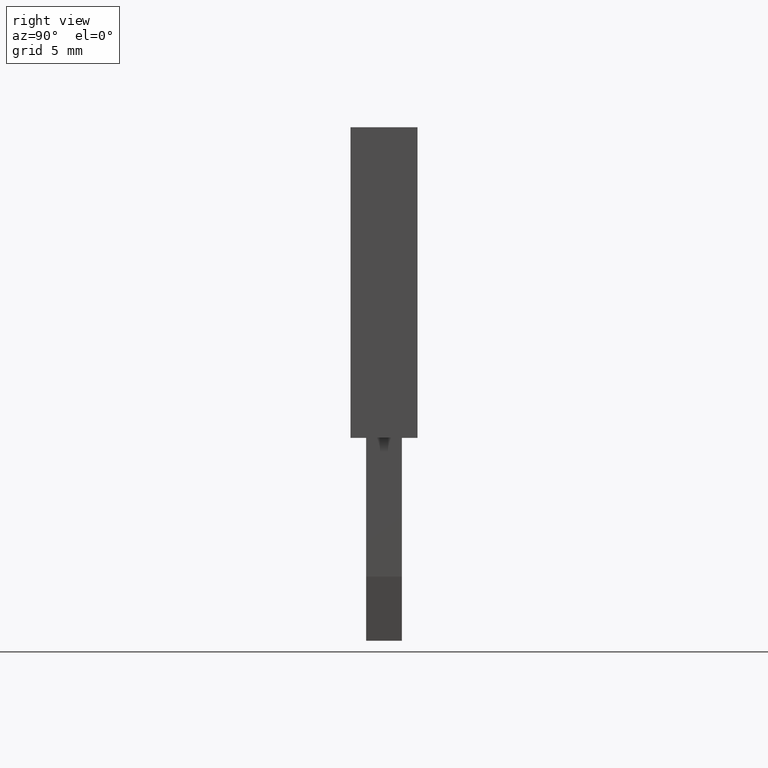
[diagram: clean part render]
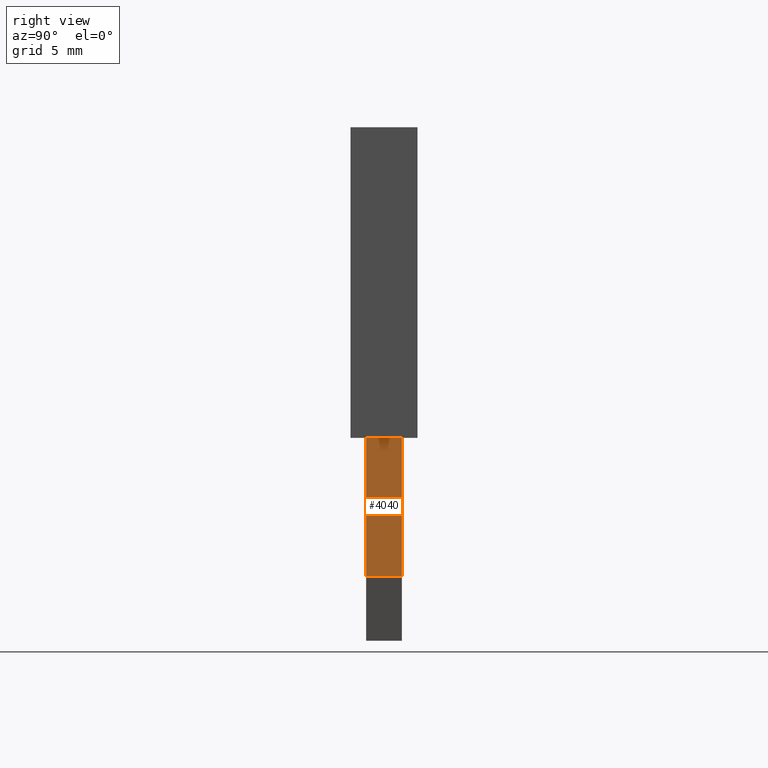
[diagram: same view with one face highlighted and labeled with its STEP entity id]
A machine part, right view. The second image highlights one B-rep face of the part: STEP entity #4040.
In plain terms, the highlighted planar face has unit normal (1, -0, 0).
Its self-contained STEP definition (entity closure, byte-faithful):
#3650=CARTESIAN_POINT('',(4.90716722171534,-17.9750000022592,
38.5199999990351));
#3660=DIRECTION('',(3.67394039744231E-16,9.11930314421364E-17,-1.));
#3670=DIRECTION('',(-1.78312595779439E-29,-1.,-9.11930314421364E-17));
#3680=AXIS2_PLACEMENT_3D('',#3650,#3660,#3670);
#3690=PLANE('',#3680);
#3700=CARTESIAN_POINT('',(3.3071672216951,-21.7849999999886,
38.5200000000026));
#3710=DIRECTION('',(1.22464679914735E-16,-1.,-6.12323399573677E-17));
#3720=VECTOR('',#3710,1.);
#3730=LINE('',#3700,#3720);
#3740=CARTESIAN_POINT('',(3.30716722169511,-23.0750000000004,
38.5199999990351));
#3750=VERTEX_POINT('',#3740);
#3760=CARTESIAN_POINT('',(3.30716722169511,-29.280742056351,
38.5199999999796));
#3770=VERTEX_POINT('',#3760);
#3780=EDGE_CURVE('',#3750,#3770,#3730,.T.);
#3790=ORIENTED_EDGE('',*,*,#3780,.F.);
#3800=CARTESIAN_POINT('',(5.60716722168536,-29.2807420505003,
38.5199999990351));
#3810=DIRECTION('',(-1.,-3.03446512339196E-15,-3.67394039744231E-16));
#3820=VECTOR('',#3810,1.);
#3830=LINE('',#3800,#3820);
#3840=CARTESIAN_POINT('',(4.9071672216951,-29.2807420505003,
38.5199999990351));
#3850=VERTEX_POINT('',#3840);
#3860=EDGE_CURVE('',#3850,#3770,#3830,.T.);
#3870=ORIENTED_EDGE('',*,*,#3860,.T.);
#3880=CARTESIAN_POINT('',(4.90716722171459,-14.7145836324927,
38.5199999990351));
#3890=DIRECTION('',(2.88230901147957E-27,1.,9.11930314421364E-17));
#3900=VECTOR('',#3890,1.);
#3910=LINE('',#3880,#3900);
#3920=CARTESIAN_POINT('',(4.9071672216951,-23.0750000000004,
38.5199999990351));
#3930=VERTEX_POINT('',#3920);
#3940=EDGE_CURVE('',#3850,#3930,#3910,.T.);
#3950=ORIENTED_EDGE('',*,*,#3940,.F.);
#3960=CARTESIAN_POINT('',(5.60716722168536,-23.0750000000004,
38.5199999990351));
#3970=DIRECTION('',(1.,0.,3.67394039744231E-16));
#3980=VECTOR('',#3970,1.);
#3990=LINE('',#3960,#3980);
#4000=EDGE_CURVE('',#3750,#3930,#3990,.T.);
#4010=ORIENTED_EDGE('',*,*,#4000,.T.);
#4020=EDGE_LOOP('',(#4010,#3950,#3870,#3790));
#4030=FACE_OUTER_BOUND('',#4020,.T.);
#4040=ADVANCED_FACE('',(#4030),#3690,.T.);